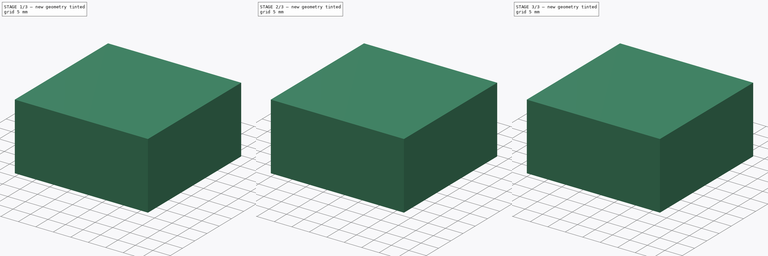
[diagram: build sequence overview — one tinted view per stage of 3, left to right]
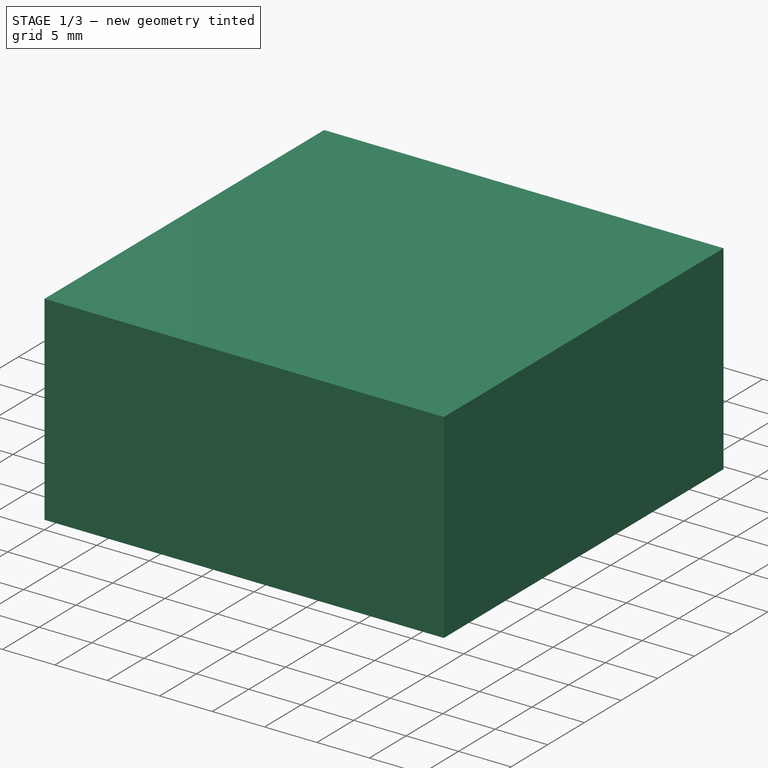
[diagram: stage 1 of 3 — iso view after this stage's code; geometry added in this stage tinted green]
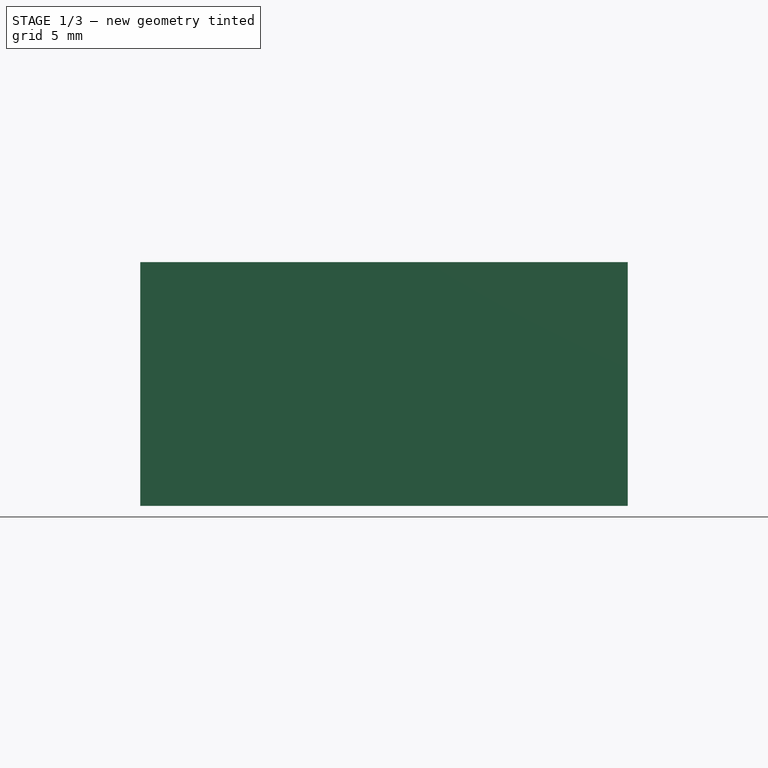
[diagram: stage 1 of 3 — front view after this stage's code; geometry added in this stage tinted green]
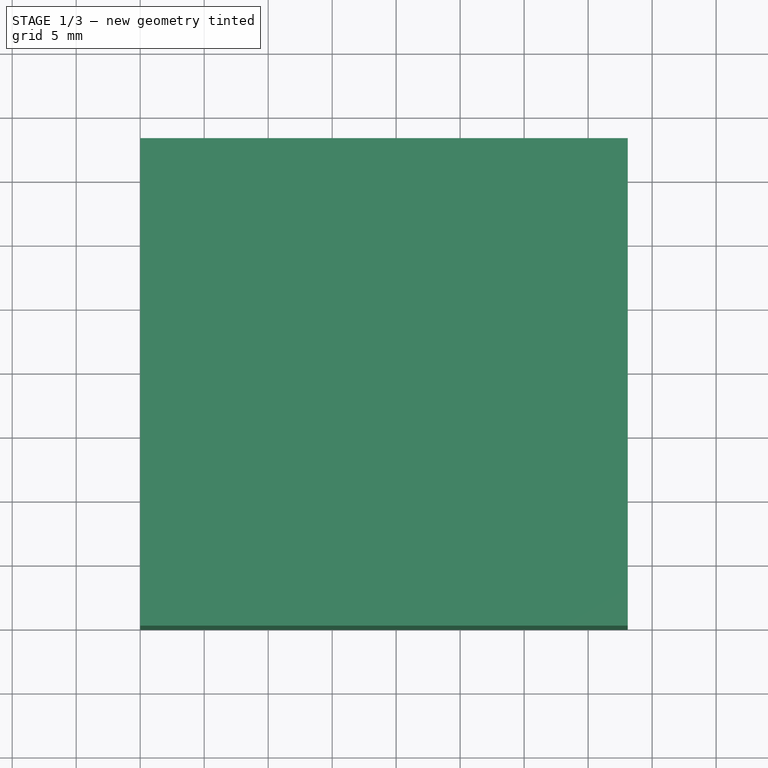
[diagram: stage 1 of 3 — top view after this stage's code; geometry added in this stage tinted green]
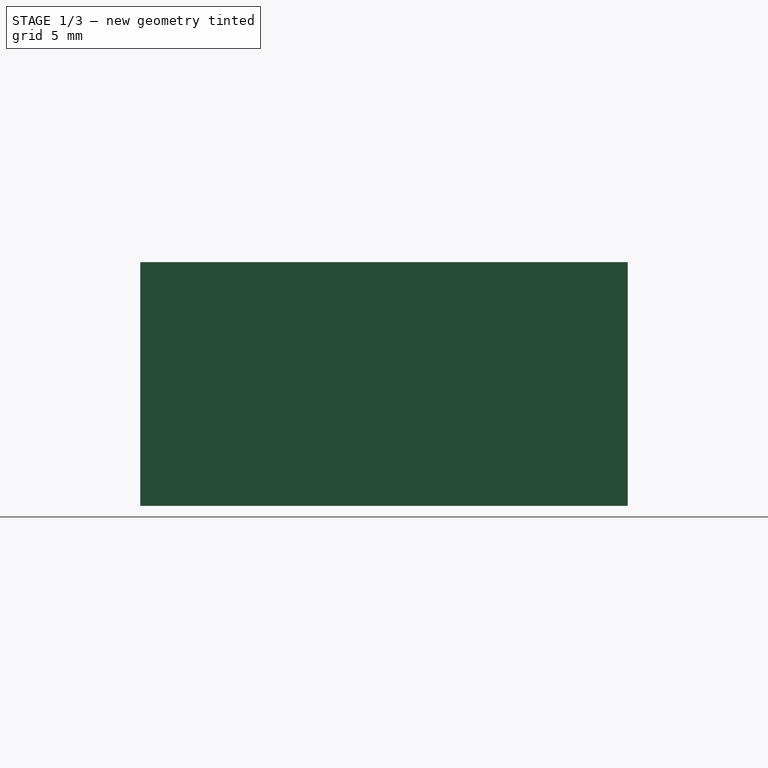
[diagram: stage 1 of 3 — right view after this stage's code; geometry added in this stage tinted green]
FCSTD DOCUMENT  (FreeCAD 0.20R29177 +426 (Git))
Label: dovetail_test
License: All rights reserved
LicenseURL: http://en.wikipedia.org/wiki/All_rights_reserved
objects: Part::Feature×12, Part::Box×5, Sketcher::SketchObject×5, Part::Extrusion×5, App::Part×4
note: 27 computed .brp shape members not serialized (recipe doc carries the construction recipe); baked Part::Feature solids carry a one-line shape summary decoded from their .brp

FEATURE [Sketcher::SketchObject] Sketch002
  FullyConstrained = false
  Placement = pos=(0,0,0) rot=(0.57735,0.57735,0.57735;2.0944rad)
  sketch-geometry (5):
    g0: LineSegment StartX=-43.6195 StartY=-0.94455 StartZ=0 EndX=-25.194 EndY=-0.94455 EndZ=0
    g1: LineSegment StartX=-25.194 StartY=-0.94455 StartZ=0 EndX=-29.2433 EndY=18.1054 EndZ=0
    g2: LineSegment StartX=-29.2433 StartY=18.1054 StartZ=0 EndX=-15.669 EndY=18.1054 EndZ=0
    g3: LineSegment StartX=-15.669 StartY=18.1054 StartZ=0 EndX=-19.7183 EndY=-0.94455 EndZ=0
    g4: LineSegment StartX=-19.7183 StartY=-0.94455 StartZ=0 EndX=-1.29284 EndY=-0.94455 EndZ=0
  constraints (7):
    c: Horizontal(g0)
    c: Coincident(g0,g1)
    c: Coincident(g1,g2)
    c: Coincident(g2,g3)
    c: Coincident(g3,g4)
    c: Horizontal(g4)
    c: Equal(g0,g4)
FEATURE [Part::Extrusion] Extrude002
  Base = -> Sketch002
  Dir = (1,0,0)
  DirMode = 2
  FaceMakerClass = Part::FaceMakerBullseye
  LengthFwd = 100
  LengthRev = 0
  Placement = pos=(-19,29,31) rot=(1,0,0;1.5708rad)
  Solid = false
  Symmetric = false
FEATURE [App::Part] Part  label="1.04mm"
  Group = -> [Sketch,Extrude,Box,Shape,Solid,Solid001,Box002,Extrude002,Sketch002]
  Origin = -> Origin
FEATURE [Part::Box] Box003
  AttacherType = Attacher::AttachEngine3D
  Height = 19.05
  Length = 38.1
  Width = 38.1
FEATURE [Sketcher::SketchObject] Sketch003
  FullyConstrained = false
  Placement = pos=(0,0,0) rot=(0.57735,0.57735,0.57735;2.0944rad)
  sketch-geometry (5):
    g0: LineSegment StartX=-43.6195 StartY=-0.94455 StartZ=0 EndX=-25.194 EndY=-0.94455 EndZ=0
    g1: LineSegment StartX=-25.194 StartY=-0.94455 StartZ=0 EndX=-29.2433 EndY=18.1054 EndZ=0
    g2: LineSegment StartX=-29.2433 StartY=18.1054 StartZ=0 EndX=-15.669 EndY=18.1054 EndZ=0
    g3: LineSegment StartX=-15.669 StartY=18.1054 StartZ=0 EndX=-19.7183 EndY=-0.94455 EndZ=0
    g4: LineSegment StartX=-19.7183 StartY=-0.94455 StartZ=0 EndX=-1.29284 EndY=-0.94455 EndZ=0
  constraints (7):
    c: Horizontal(g0)
    c: Coincident(g0,g1)
    c: Coincident(g1,g2)
    c: Coincident(g2,g3)
    c: Coincident(g3,g4)
    c: Horizontal(g4)
    c: Equal(g0,g4)
FEATURE [Part::Extrusion] Extrude003
  Base = -> Sketch003
  Dir = (1,0,0)
  DirMode = 2
  FaceMakerClass = Part::FaceMakerBullseye
  LengthFwd = 100
  LengthRev = 0
  Placement = pos=(-19,29,31) rot=(1,0,0;1.5708rad)
  Solid = false
  Symmetric = false
FEATURE [Part::Feature] Shape002  label="Solid002"
  Placement = pos=(-19,29,31) rot=(1,0,0;1.5708rad)
  shape: bbox 101.6 x 20.61 x 43.89 mm, 5 faces, 0 solids (baked)
FEATURE [Part::Feature] Solid004  label="vagina002"
  shape: bbox 39.66 x 31.5 x 20.61 mm, 10 faces (baked)
FEATURE [Part::Feature] Solid005  label="penis002"
  shape: bbox 39.66 x 28.77 x 20.61 mm, 10 faces (baked)
FEATURE [App::Part] Part002  label=".78"
  Group = -> [Box003,Sketch003,Extrude003,Shape002,Solid004,Solid005]
  Origin = -> Origin002
FEATURE [Part::Box] Box004
  AttacherType = Attacher::AttachEngine3D
  Height = 19.05
  Length = 38.1
  Width = 38.1
FEATURE [Sketcher::SketchObject] Sketch004
  FullyConstrained = false
  Placement = pos=(0,0,0) rot=(0.57735,0.57735,0.57735;2.0944rad)
  sketch-geometry (5):
    g0: LineSegment StartX=-43.6195 StartY=-0.94455 StartZ=0 EndX=-25.194 EndY=-0.94455 EndZ=0
    g1: LineSegment StartX=-25.194 StartY=-0.94455 StartZ=0 EndX=-29.2433 EndY=18.1054 EndZ=0
    g2: LineSegment StartX=-29.2433 StartY=18.1054 StartZ=0 EndX=-15.669 EndY=18.1054 EndZ=0
    g3: LineSegment StartX=-15.669 StartY=18.1054 StartZ=0 EndX=-19.7183 EndY=-0.94455 EndZ=0
    g4: LineSegment StartX=-19.7183 StartY=-0.94455 StartZ=0 EndX=-1.29284 EndY=-0.94455 EndZ=0
  constraints (7):
    c: Horizontal(g0)
    c: Coincident(g0,g1)
    c: Coincident(g1,g2)
    c: Coincident(g2,g3)
    c: Coincident(g3,g4)
    c: Horizontal(g4)
    c: Equal(g0,g4)
FEATURE [Part::Extrusion] Extrude004
  Base = -> Sketch004
  Dir = (1,0,0)
  DirMode = 2
  FaceMakerClass = Part::FaceMakerBullseye
  LengthFwd = 100
  LengthRev = 0
  Placement = pos=(-19,29,31) rot=(1,0,0;1.5708rad)
  Solid = false
  Symmetric = false
FEATURE [Part::Feature] Shape003  label="Face"
  Placement = pos=(-19,29,31) rot=(1,0,0;1.5708rad)
  shape: bbox 101.3 x 20.35 x 43.63 mm, 5 faces, 0 solids (baked)
FEATURE [Part::Feature] Solid006  label="vagina003"
  shape: bbox 39.4 x 31.24 x 20.35 mm, 10 faces (baked)
FEATURE [Part::Feature] Solid007  label="penis003"
  shape: bbox 39.4 x 28.51 x 20.35 mm, 10 faces (baked)
FEATURE [App::Part] Part003  label=".65"
  Group = -> [Box004,Extrude004,Sketch004,Shape003,Solid006,Solid007]
  Origin = -> Origin003
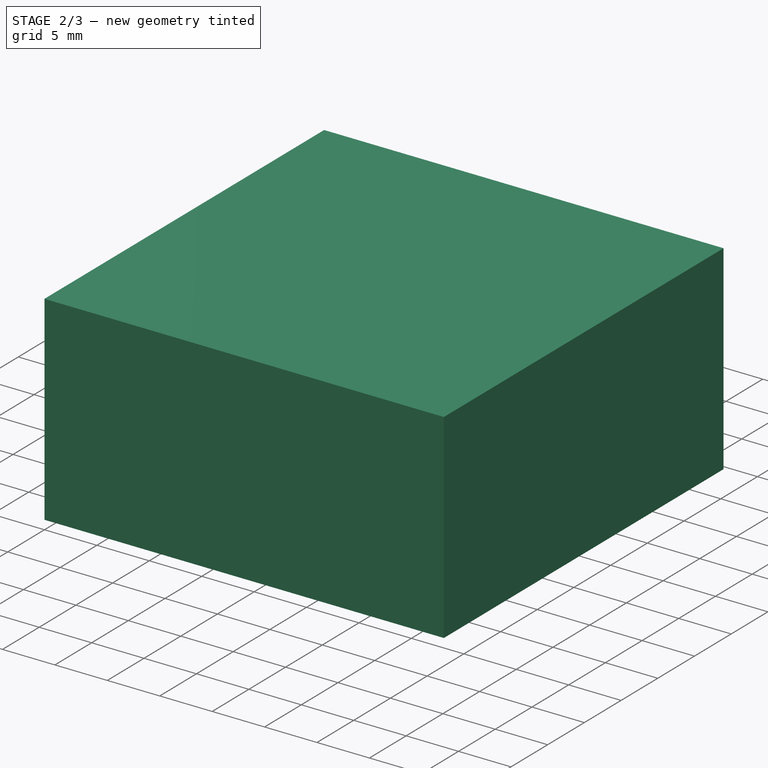
[diagram: stage 2 of 3 — iso view after this stage's code; geometry added in this stage tinted green]
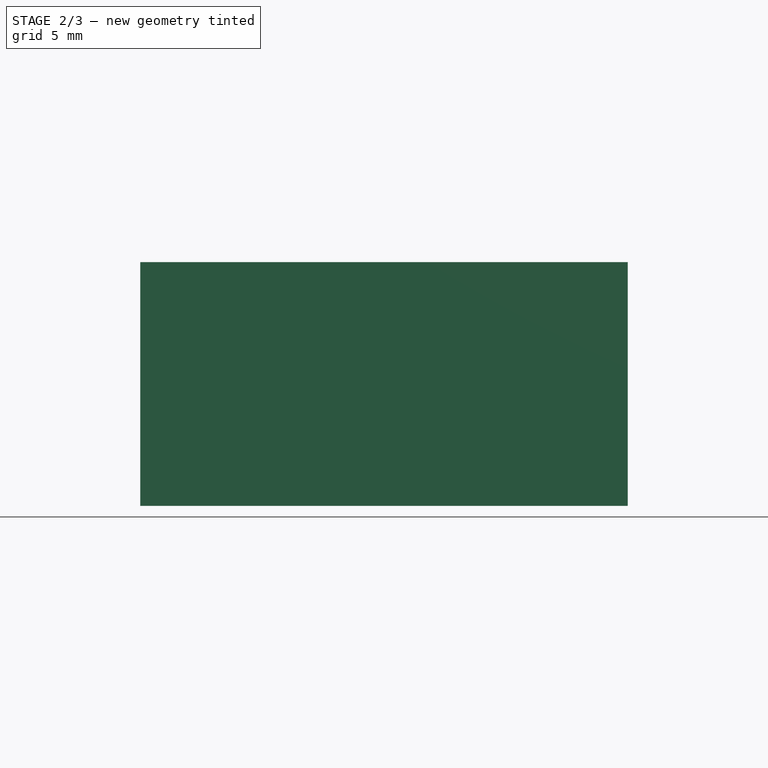
[diagram: stage 2 of 3 — front view after this stage's code; geometry added in this stage tinted green]
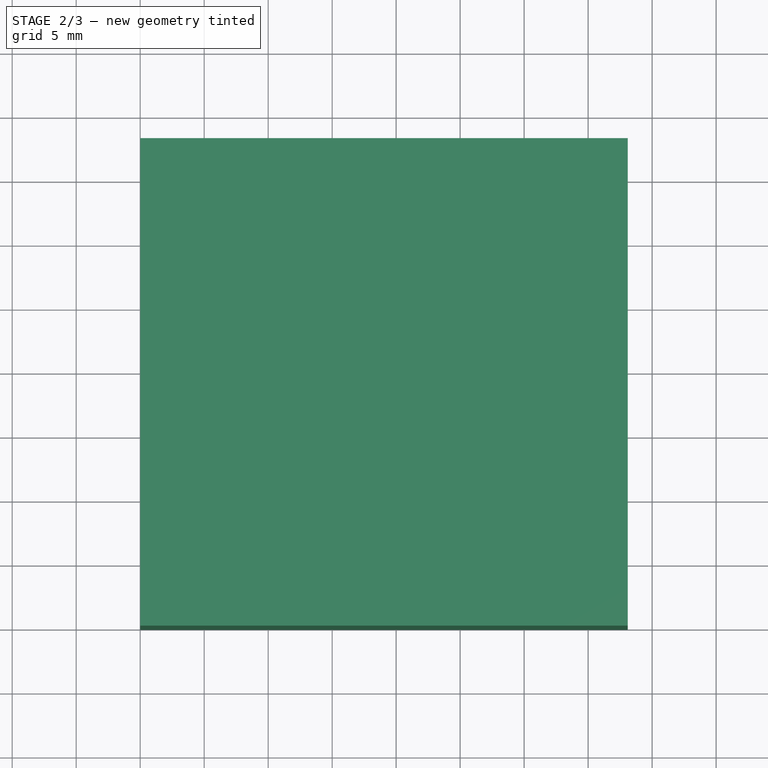
[diagram: stage 2 of 3 — top view after this stage's code; geometry added in this stage tinted green]
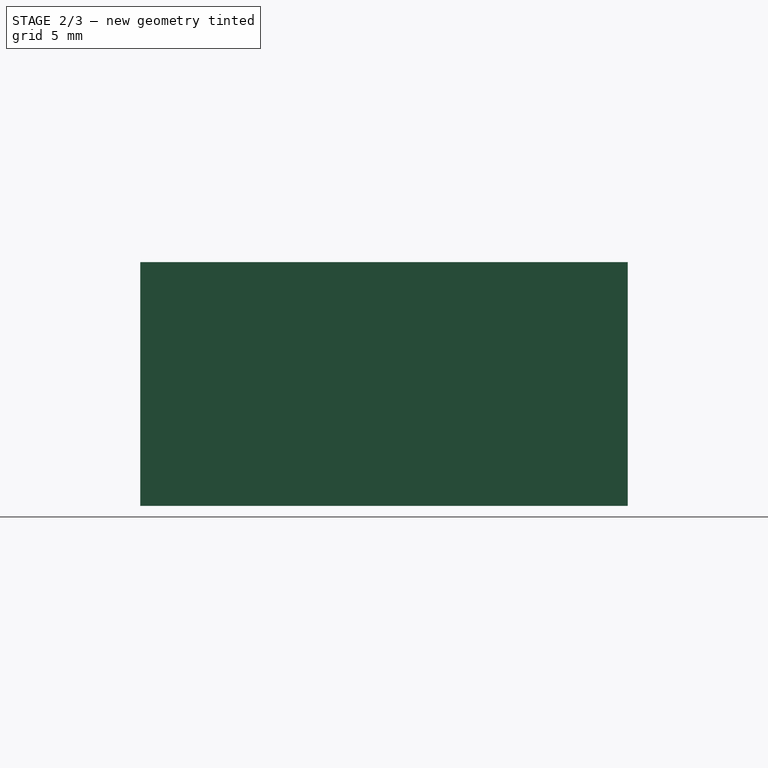
[diagram: stage 2 of 3 — right view after this stage's code; geometry added in this stage tinted green]
FEATURE [Sketcher::SketchObject] Sketch001
  FullyConstrained = false
  Placement = pos=(0,0,0) rot=(0.57735,0.57735,0.57735;2.0944rad)
  sketch-geometry (5):
    g0: LineSegment StartX=-43.6195 StartY=-0.94455 StartZ=0 EndX=-25.194 EndY=-0.94455 EndZ=0
    g1: LineSegment StartX=-25.194 StartY=-0.94455 StartZ=0 EndX=-29.2433 EndY=18.1054 EndZ=0
    g2: LineSegment StartX=-29.2433 StartY=18.1054 StartZ=0 EndX=-15.669 EndY=18.1054 EndZ=0
    g3: LineSegment StartX=-15.669 StartY=18.1054 StartZ=0 EndX=-19.7183 EndY=-0.94455 EndZ=0
    g4: LineSegment StartX=-19.7183 StartY=-0.94455 StartZ=0 EndX=-1.29284 EndY=-0.94455 EndZ=0
  constraints (7):
    c: Horizontal(g0)
    c: Coincident(g0,g1)
    c: Coincident(g1,g2)
    c: Coincident(g2,g3)
    c: Coincident(g3,g4)
    c: Horizontal(g4)
    c: Equal(g0,g4)
FEATURE [Part::Extrusion] Extrude001
  Base = -> Sketch001
  Dir = (1,0,0)
  DirMode = 2
  FaceMakerClass = Part::FaceMakerBullseye
  LengthFwd = 100
  LengthRev = 0
  Placement = pos=(-19,29,31) rot=(1,0,0;1.5708rad)
  Solid = false
  Symmetric = false
FEATURE [Part::Feature] Shape  label="Solid"
  Placement = pos=(-19,29,31) rot=(1,0,0;1.5708rad)
  shape: bbox 102.1 x 21.13 x 44.41 mm, 5 faces, 0 solids (baked)
FEATURE [Part::Feature] Solid  label="vagina"
  shape: bbox 40.18 x 32.02 x 21.13 mm, 10 faces (baked)
FEATURE [Part::Feature] Solid001  label="penis"
  shape: bbox 40.18 x 29.29 x 21.13 mm, 10 faces (baked)
FEATURE [Part::Feature] Shape001  label="Solid001"
  Placement = pos=(-19,29,31) rot=(1,0,0;1.5708rad)
  shape: bbox 101.8 x 20.87 x 44.15 mm, 5 faces, 0 solids (baked)
FEATURE [Part::Feature] Solid002  label="vagina001"
  shape: bbox 39.92 x 31.76 x 20.87 mm, 10 faces (baked)
FEATURE [Part::Feature] Solid003  label="penis001"
  shape: bbox 39.92 x 29.03 x 20.87 mm, 10 faces (baked)
FEATURE [App::Part] Part001  label=".91"
  Group = -> [Box001,Sketch001,Extrude001,Shape001,Solid003,Solid002]
  Origin = -> Origin001
FEATURE [Part::Box] Box002
  AttacherType = Attacher::AttachEngine3D
  Height = 19.05
  Length = 38.1
  Width = 38.1
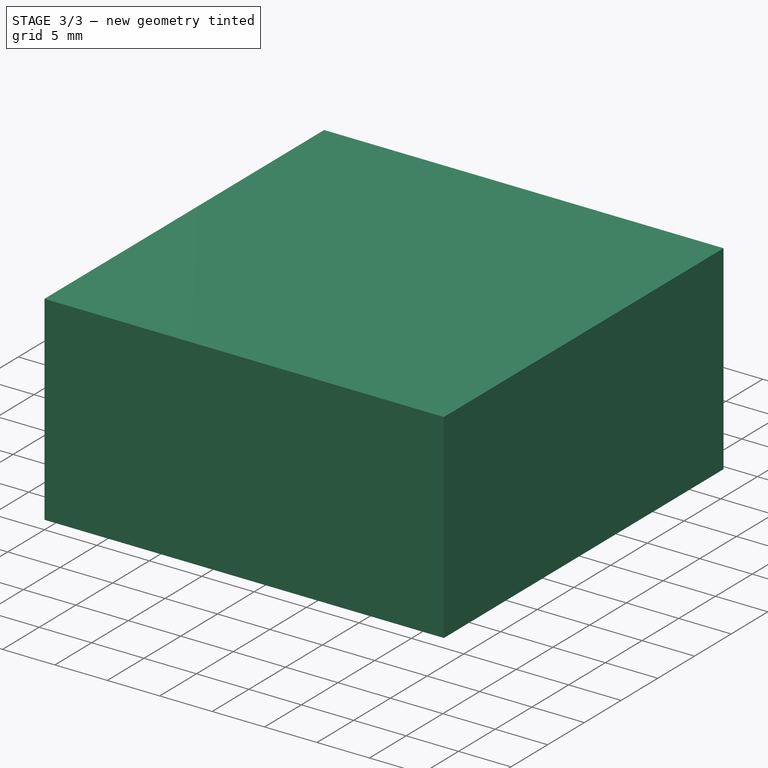
[diagram: stage 3 of 3 — iso view after this stage's code; geometry added in this stage tinted green]
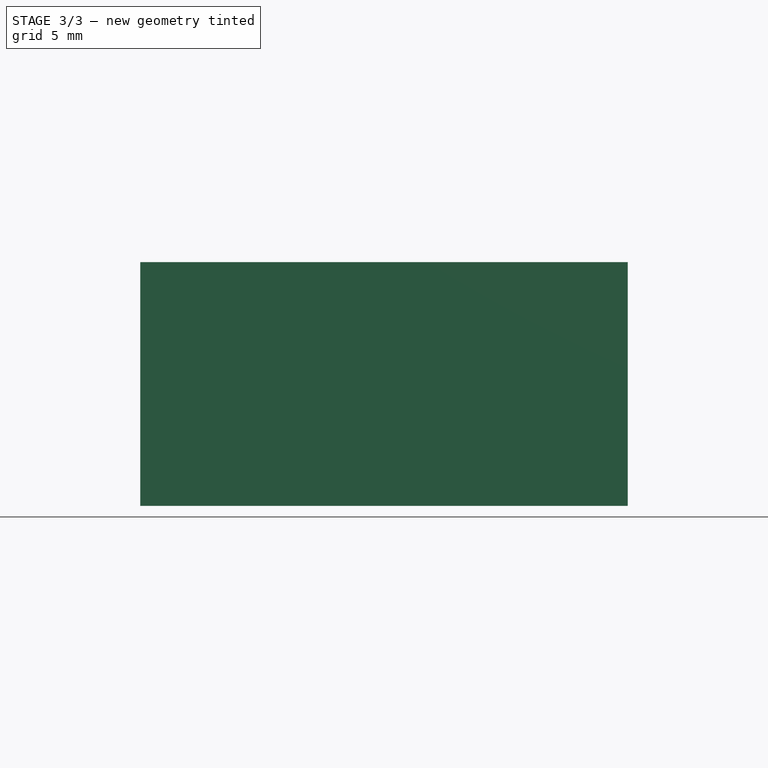
[diagram: stage 3 of 3 — front view after this stage's code; geometry added in this stage tinted green]
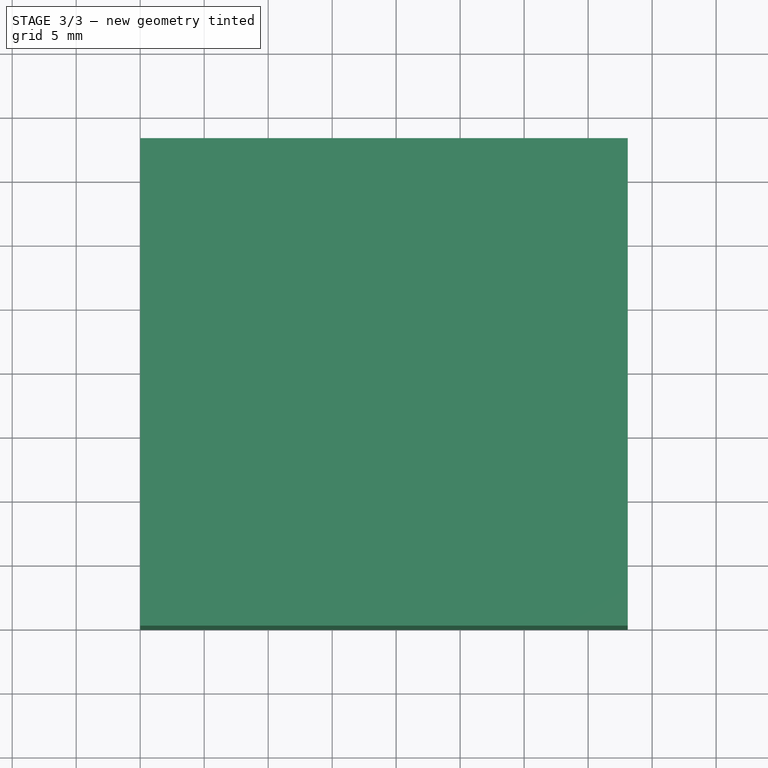
[diagram: stage 3 of 3 — top view after this stage's code; geometry added in this stage tinted green]
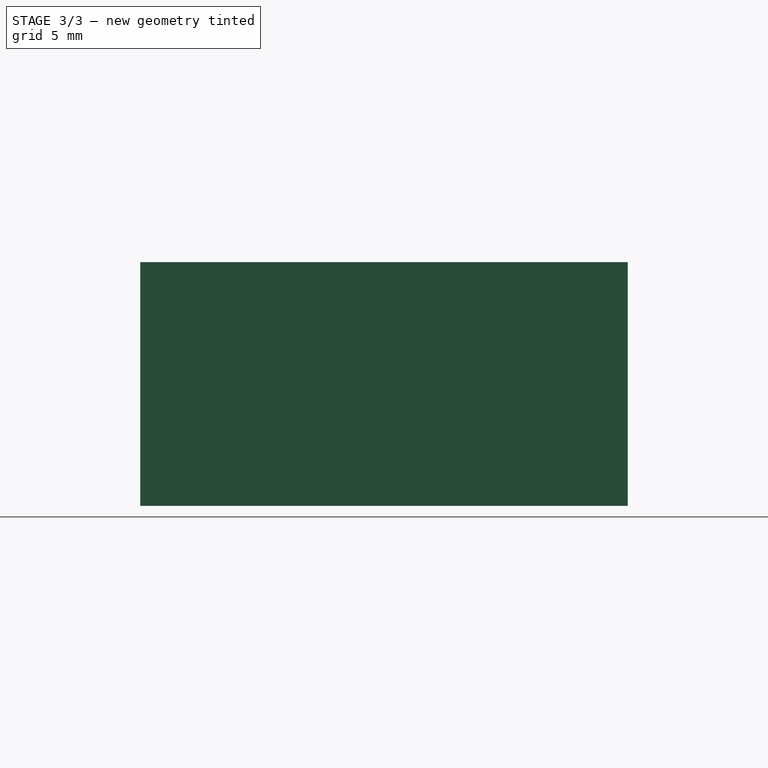
[diagram: stage 3 of 3 — right view after this stage's code; geometry added in this stage tinted green]
FEATURE [Part::Box] Box
  AttacherType = Attacher::AttachEngine3D
  Height = 19.05
  Length = 38.1
  Width = 38.1
FEATURE [Sketcher::SketchObject] Sketch
  FullyConstrained = false
  Placement = pos=(0,0,0) rot=(0.57735,0.57735,0.57735;2.0944rad)
  sketch-geometry (5):
    g0: LineSegment StartX=-43.6195 StartY=-0.94455 StartZ=0 EndX=-25.194 EndY=-0.94455 EndZ=0
    g1: LineSegment StartX=-25.194 StartY=-0.94455 StartZ=0 EndX=-29.2433 EndY=18.1054 EndZ=0
    g2: LineSegment StartX=-29.2433 StartY=18.1054 StartZ=0 EndX=-15.669 EndY=18.1054 EndZ=0
    g3: LineSegment StartX=-15.669 StartY=18.1054 StartZ=0 EndX=-19.7183 EndY=-0.94455 EndZ=0
    g4: LineSegment StartX=-19.7183 StartY=-0.94455 StartZ=0 EndX=-1.29284 EndY=-0.94455 EndZ=0
  constraints (7):
    c: Horizontal(g0)
    c: Coincident(g0,g1)
    c: Coincident(g1,g2)
    c: Coincident(g2,g3)
    c: Coincident(g3,g4)
    c: Horizontal(g4)
    c: Equal(g0,g4)
FEATURE [Part::Extrusion] Extrude
  Base = -> Sketch
  Dir = (1,0,0)
  DirMode = 2
  FaceMakerClass = Part::FaceMakerBullseye
  LengthFwd = 100
  LengthRev = 0
  Placement = pos=(-19,29,31) rot=(1,0,0;1.5708rad)
  Solid = false
  Symmetric = false
FEATURE [Part::Box] Box001
  AttacherType = Attacher::AttachEngine3D
  Height = 19.05
  Length = 38.1
  Width = 38.1
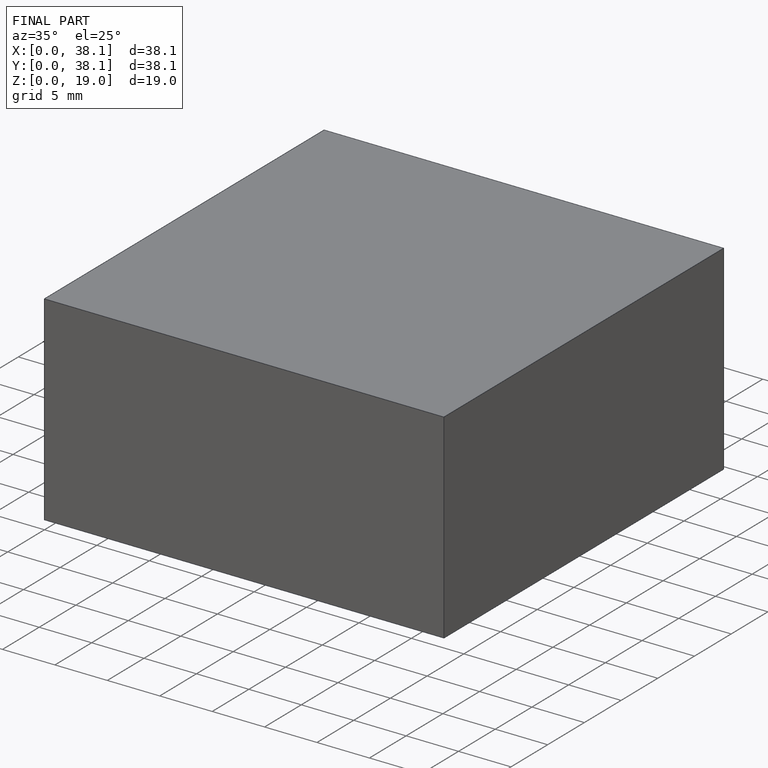
[diagram: finished part — iso view with bounding-box wireframe]
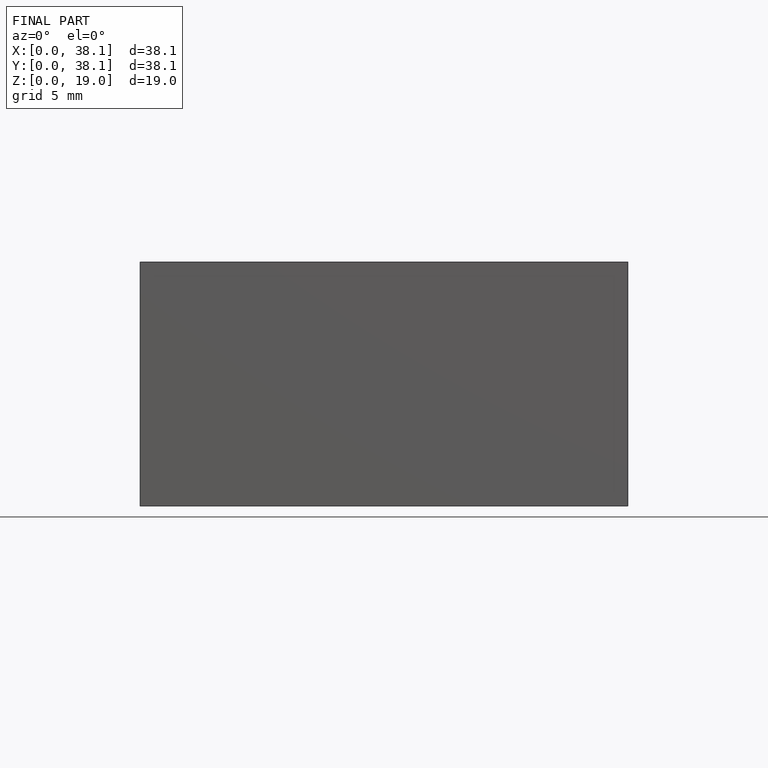
[diagram: finished part — front view with bounding-box wireframe]
